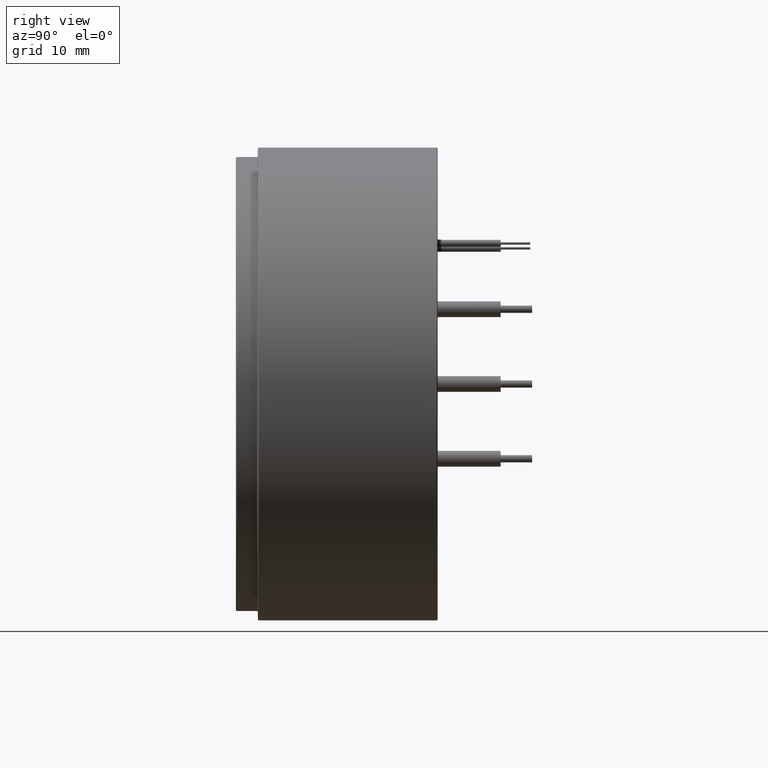
[diagram: clean part render]
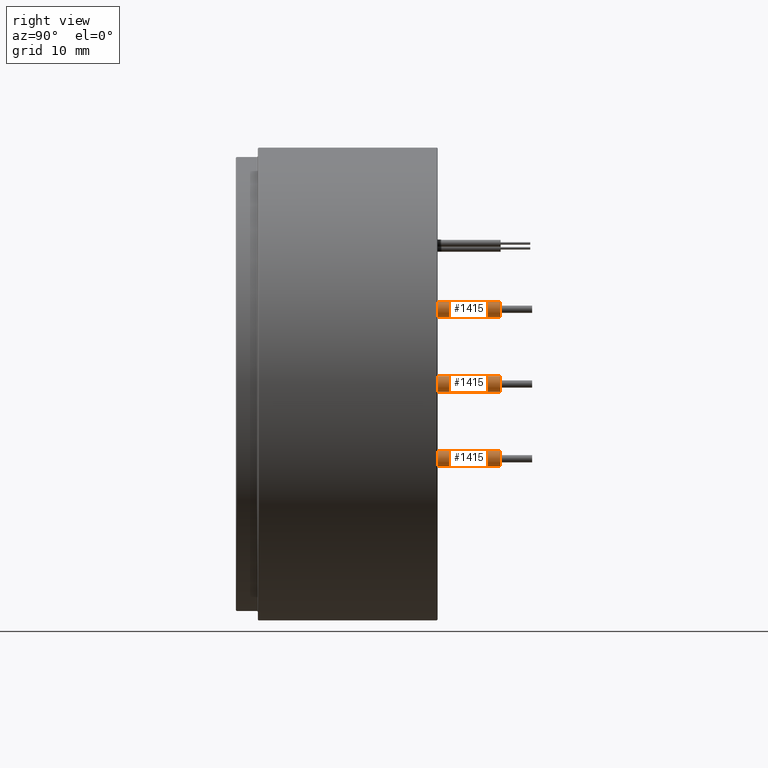
[diagram: same view with one multi-face feature highlighted, each face labeled with its STEP entity id]
A machine part, right view. The highlighted faces form ONE feature: a constant-radius fillet chain: 3 tangent blend faces with common blend radius 1.25 mm. The faces share edges in the B-rep.
Their STEP definitions:
[1] entity #1415 (Cylinder):
#33 = CARTESIAN_POINT ( 'NONE',  ( 0.0000000000000000000, 5.421010862427522200E-017, 0.0000000000000000000 ) ) ;
#169 = CARTESIAN_POINT ( 'NONE',  ( 1.250000000000000000, 2.072909585176943800E-016, 0.0000000000000000000 ) ) ;
#192 = EDGE_LOOP ( 'NONE', ( #2345, #2315, #2597, #2868 ) ) ;
#445 = CARTESIAN_POINT ( 'NONE',  ( 1.250000000000000000, 2.072909585176943800E-016, 10.00000000000000000 ) ) ;
#480 = DIRECTION ( 'NONE',  ( -0.0000000000000000000, -0.0000000000000000000, -1.000000000000000000 ) ) ;
#514 = CARTESIAN_POINT ( 'NONE',  ( 0.0000000000000000000, 5.421010862427522200E-017, 10.00000000000000000 ) ) ;
#705 = VERTEX_POINT ( 'NONE', #2306 ) ;
#765 = DIRECTION ( 'NONE',  ( -0.0000000000000000000, -0.0000000000000000000, -1.000000000000000000 ) ) ;
#1002 = CIRCLE ( 'NONE', #1686, 1.250000000000000000 ) ;
#1072 = DIRECTION ( 'NONE',  ( 1.000000000000000000, 0.0000000000000000000, 0.0000000000000000000 ) ) ;
#1311 = LINE ( 'NONE', #2851, #2007 ) ;
#1415 = ADVANCED_FACE ( 'NONE', ( #3266 ), #2542, .T. ) ;
#1506 = DIRECTION ( 'NONE',  ( -1.000000000000000000, 0.0000000000000000000, 0.0000000000000000000 ) ) ;
#1522 = DIRECTION ( 'NONE',  ( 0.0000000000000000000, 0.0000000000000000000, 1.000000000000000000 ) ) ;
#1582 = AXIS2_PLACEMENT_3D ( 'NONE', #2792, #480, #1506 ) ;
#1686 = AXIS2_PLACEMENT_3D ( 'NONE', #514, #1522, #2056 ) ;
#1719 = CARTESIAN_POINT ( 'NONE',  ( 1.250000000000000000, 2.072909585176943800E-016, 10.00000000000000000 ) ) ;
#1836 = DIRECTION ( 'NONE',  ( 0.0000000000000000000, 0.0000000000000000000, 1.000000000000000000 ) ) ;
#1905 = VERTEX_POINT ( 'NONE', #1719 ) ;
#2007 = VECTOR ( 'NONE', #765, 1000.000000000000000 ) ;
#2056 = DIRECTION ( 'NONE',  ( 1.000000000000000000, 0.0000000000000000000, 0.0000000000000000000 ) ) ;
#2105 = VERTEX_POINT ( 'NONE', #2321 ) ;
#2171 = VECTOR ( 'NONE', #2751, 1000.000000000000000 ) ;
#2306 = CARTESIAN_POINT ( 'NONE',  ( -1.250000000000000000, 5.421010862427522200E-017, 0.0000000000000000000 ) ) ;
#2315 = ORIENTED_EDGE ( 'NONE', *, *, #2762, .F. ) ;
#2321 = CARTESIAN_POINT ( 'NONE',  ( -1.250000000000000000, 5.421010862427522200E-017, 10.00000000000000000 ) ) ;
#2345 = ORIENTED_EDGE ( 'NONE', *, *, #2621, .F. ) ;
#2542 = CYLINDRICAL_SURFACE ( 'NONE', #1582, 1.250000000000000000 ) ;
#2557 = VERTEX_POINT ( 'NONE', #169 ) ;
#2572 = CIRCLE ( 'NONE', #3190, 1.250000000000000000 ) ;
#2597 = ORIENTED_EDGE ( 'NONE', *, *, #2828, .T. ) ;
#2621 = EDGE_CURVE ( 'NONE', #1905, #2557, #3017, .T. ) ;
#2751 = DIRECTION ( 'NONE',  ( -0.0000000000000000000, -0.0000000000000000000, -1.000000000000000000 ) ) ;
#2762 = EDGE_CURVE ( 'NONE', #2105, #1905, #1002, .T. ) ;
#2792 = CARTESIAN_POINT ( 'NONE',  ( 0.0000000000000000000, 5.421010862427522200E-017, 10.00000000000000000 ) ) ;
#2828 = EDGE_CURVE ( 'NONE', #2105, #705, #1311, .T. ) ;
#2851 = CARTESIAN_POINT ( 'NONE',  ( -1.250000000000000000, 5.421010862427522200E-017, 10.00000000000000000 ) ) ;
#2868 = ORIENTED_EDGE ( 'NONE', *, *, #2893, .T. ) ;
#2893 = EDGE_CURVE ( 'NONE', #705, #2557, #2572, .T. ) ;
#3017 = LINE ( 'NONE', #445, #2171 ) ;
#3190 = AXIS2_PLACEMENT_3D ( 'NONE', #33, #1836, #1072 ) ;
#3266 = FACE_OUTER_BOUND ( 'NONE', #192, .T. ) ;
[2] entity #1415 (Cylinder):
#33 = CARTESIAN_POINT ( 'NONE',  ( 0.0000000000000000000, 5.421010862427522200E-017, 0.0000000000000000000 ) ) ;
#169 = CARTESIAN_POINT ( 'NONE',  ( 1.250000000000000000, 2.072909585176943800E-016, 0.0000000000000000000 ) ) ;
#192 = EDGE_LOOP ( 'NONE', ( #2345, #2315, #2597, #2868 ) ) ;
#445 = CARTESIAN_POINT ( 'NONE',  ( 1.250000000000000000, 2.072909585176943800E-016, 10.00000000000000000 ) ) ;
#480 = DIRECTION ( 'NONE',  ( -0.0000000000000000000, -0.0000000000000000000, -1.000000000000000000 ) ) ;
#514 = CARTESIAN_POINT ( 'NONE',  ( 0.0000000000000000000, 5.421010862427522200E-017, 10.00000000000000000 ) ) ;
#705 = VERTEX_POINT ( 'NONE', #2306 ) ;
#765 = DIRECTION ( 'NONE',  ( -0.0000000000000000000, -0.0000000000000000000, -1.000000000000000000 ) ) ;
#1002 = CIRCLE ( 'NONE', #1686, 1.250000000000000000 ) ;
#1072 = DIRECTION ( 'NONE',  ( 1.000000000000000000, 0.0000000000000000000, 0.0000000000000000000 ) ) ;
#1311 = LINE ( 'NONE', #2851, #2007 ) ;
#1415 = ADVANCED_FACE ( 'NONE', ( #3266 ), #2542, .T. ) ;
#1506 = DIRECTION ( 'NONE',  ( -1.000000000000000000, 0.0000000000000000000, 0.0000000000000000000 ) ) ;
#1522 = DIRECTION ( 'NONE',  ( 0.0000000000000000000, 0.0000000000000000000, 1.000000000000000000 ) ) ;
#1582 = AXIS2_PLACEMENT_3D ( 'NONE', #2792, #480, #1506 ) ;
#1686 = AXIS2_PLACEMENT_3D ( 'NONE', #514, #1522, #2056 ) ;
#1719 = CARTESIAN_POINT ( 'NONE',  ( 1.250000000000000000, 2.072909585176943800E-016, 10.00000000000000000 ) ) ;
#1836 = DIRECTION ( 'NONE',  ( 0.0000000000000000000, 0.0000000000000000000, 1.000000000000000000 ) ) ;
#1905 = VERTEX_POINT ( 'NONE', #1719 ) ;
#2007 = VECTOR ( 'NONE', #765, 1000.000000000000000 ) ;
#2056 = DIRECTION ( 'NONE',  ( 1.000000000000000000, 0.0000000000000000000, 0.0000000000000000000 ) ) ;
#2105 = VERTEX_POINT ( 'NONE', #2321 ) ;
#2171 = VECTOR ( 'NONE', #2751, 1000.000000000000000 ) ;
#2306 = CARTESIAN_POINT ( 'NONE',  ( -1.250000000000000000, 5.421010862427522200E-017, 0.0000000000000000000 ) ) ;
#2315 = ORIENTED_EDGE ( 'NONE', *, *, #2762, .F. ) ;
#2321 = CARTESIAN_POINT ( 'NONE',  ( -1.250000000000000000, 5.421010862427522200E-017, 10.00000000000000000 ) ) ;
#2345 = ORIENTED_EDGE ( 'NONE', *, *, #2621, .F. ) ;
#2542 = CYLINDRICAL_SURFACE ( 'NONE', #1582, 1.250000000000000000 ) ;
#2557 = VERTEX_POINT ( 'NONE', #169 ) ;
#2572 = CIRCLE ( 'NONE', #3190, 1.250000000000000000 ) ;
#2597 = ORIENTED_EDGE ( 'NONE', *, *, #2828, .T. ) ;
#2621 = EDGE_CURVE ( 'NONE', #1905, #2557, #3017, .T. ) ;
#2751 = DIRECTION ( 'NONE',  ( -0.0000000000000000000, -0.0000000000000000000, -1.000000000000000000 ) ) ;
#2762 = EDGE_CURVE ( 'NONE', #2105, #1905, #1002, .T. ) ;
#2792 = CARTESIAN_POINT ( 'NONE',  ( 0.0000000000000000000, 5.421010862427522200E-017, 10.00000000000000000 ) ) ;
#2828 = EDGE_CURVE ( 'NONE', #2105, #705, #1311, .T. ) ;
#2851 = CARTESIAN_POINT ( 'NONE',  ( -1.250000000000000000, 5.421010862427522200E-017, 10.00000000000000000 ) ) ;
#2868 = ORIENTED_EDGE ( 'NONE', *, *, #2893, .T. ) ;
#2893 = EDGE_CURVE ( 'NONE', #705, #2557, #2572, .T. ) ;
#3017 = LINE ( 'NONE', #445, #2171 ) ;
#3190 = AXIS2_PLACEMENT_3D ( 'NONE', #33, #1836, #1072 ) ;
#3266 = FACE_OUTER_BOUND ( 'NONE', #192, .T. ) ;
[3] entity #1415 (Cylinder):
#33 = CARTESIAN_POINT ( 'NONE',  ( 0.0000000000000000000, 5.421010862427522200E-017, 0.0000000000000000000 ) ) ;
#169 = CARTESIAN_POINT ( 'NONE',  ( 1.250000000000000000, 2.072909585176943800E-016, 0.0000000000000000000 ) ) ;
#192 = EDGE_LOOP ( 'NONE', ( #2345, #2315, #2597, #2868 ) ) ;
#445 = CARTESIAN_POINT ( 'NONE',  ( 1.250000000000000000, 2.072909585176943800E-016, 10.00000000000000000 ) ) ;
#480 = DIRECTION ( 'NONE',  ( -0.0000000000000000000, -0.0000000000000000000, -1.000000000000000000 ) ) ;
#514 = CARTESIAN_POINT ( 'NONE',  ( 0.0000000000000000000, 5.421010862427522200E-017, 10.00000000000000000 ) ) ;
#705 = VERTEX_POINT ( 'NONE', #2306 ) ;
#765 = DIRECTION ( 'NONE',  ( -0.0000000000000000000, -0.0000000000000000000, -1.000000000000000000 ) ) ;
#1002 = CIRCLE ( 'NONE', #1686, 1.250000000000000000 ) ;
#1072 = DIRECTION ( 'NONE',  ( 1.000000000000000000, 0.0000000000000000000, 0.0000000000000000000 ) ) ;
#1311 = LINE ( 'NONE', #2851, #2007 ) ;
#1415 = ADVANCED_FACE ( 'NONE', ( #3266 ), #2542, .T. ) ;
#1506 = DIRECTION ( 'NONE',  ( -1.000000000000000000, 0.0000000000000000000, 0.0000000000000000000 ) ) ;
#1522 = DIRECTION ( 'NONE',  ( 0.0000000000000000000, 0.0000000000000000000, 1.000000000000000000 ) ) ;
#1582 = AXIS2_PLACEMENT_3D ( 'NONE', #2792, #480, #1506 ) ;
#1686 = AXIS2_PLACEMENT_3D ( 'NONE', #514, #1522, #2056 ) ;
#1719 = CARTESIAN_POINT ( 'NONE',  ( 1.250000000000000000, 2.072909585176943800E-016, 10.00000000000000000 ) ) ;
#1836 = DIRECTION ( 'NONE',  ( 0.0000000000000000000, 0.0000000000000000000, 1.000000000000000000 ) ) ;
#1905 = VERTEX_POINT ( 'NONE', #1719 ) ;
#2007 = VECTOR ( 'NONE', #765, 1000.000000000000000 ) ;
#2056 = DIRECTION ( 'NONE',  ( 1.000000000000000000, 0.0000000000000000000, 0.0000000000000000000 ) ) ;
#2105 = VERTEX_POINT ( 'NONE', #2321 ) ;
#2171 = VECTOR ( 'NONE', #2751, 1000.000000000000000 ) ;
#2306 = CARTESIAN_POINT ( 'NONE',  ( -1.250000000000000000, 5.421010862427522200E-017, 0.0000000000000000000 ) ) ;
#2315 = ORIENTED_EDGE ( 'NONE', *, *, #2762, .F. ) ;
#2321 = CARTESIAN_POINT ( 'NONE',  ( -1.250000000000000000, 5.421010862427522200E-017, 10.00000000000000000 ) ) ;
#2345 = ORIENTED_EDGE ( 'NONE', *, *, #2621, .F. ) ;
#2542 = CYLINDRICAL_SURFACE ( 'NONE', #1582, 1.250000000000000000 ) ;
#2557 = VERTEX_POINT ( 'NONE', #169 ) ;
#2572 = CIRCLE ( 'NONE', #3190, 1.250000000000000000 ) ;
#2597 = ORIENTED_EDGE ( 'NONE', *, *, #2828, .T. ) ;
#2621 = EDGE_CURVE ( 'NONE', #1905, #2557, #3017, .T. ) ;
#2751 = DIRECTION ( 'NONE',  ( -0.0000000000000000000, -0.0000000000000000000, -1.000000000000000000 ) ) ;
#2762 = EDGE_CURVE ( 'NONE', #2105, #1905, #1002, .T. ) ;
#2792 = CARTESIAN_POINT ( 'NONE',  ( 0.0000000000000000000, 5.421010862427522200E-017, 10.00000000000000000 ) ) ;
#2828 = EDGE_CURVE ( 'NONE', #2105, #705, #1311, .T. ) ;
#2851 = CARTESIAN_POINT ( 'NONE',  ( -1.250000000000000000, 5.421010862427522200E-017, 10.00000000000000000 ) ) ;
#2868 = ORIENTED_EDGE ( 'NONE', *, *, #2893, .T. ) ;
#2893 = EDGE_CURVE ( 'NONE', #705, #2557, #2572, .T. ) ;
#3017 = LINE ( 'NONE', #445, #2171 ) ;
#3190 = AXIS2_PLACEMENT_3D ( 'NONE', #33, #1836, #1072 ) ;
#3266 = FACE_OUTER_BOUND ( 'NONE', #192, .T. ) ;